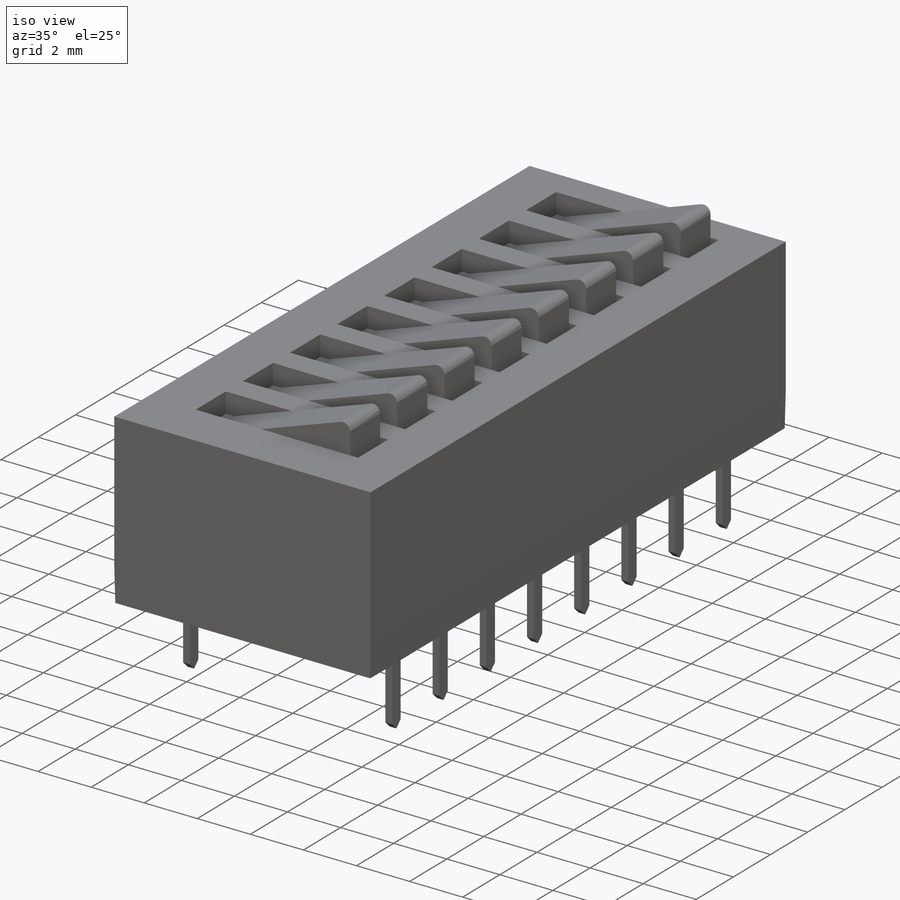
[diagram: iso view]
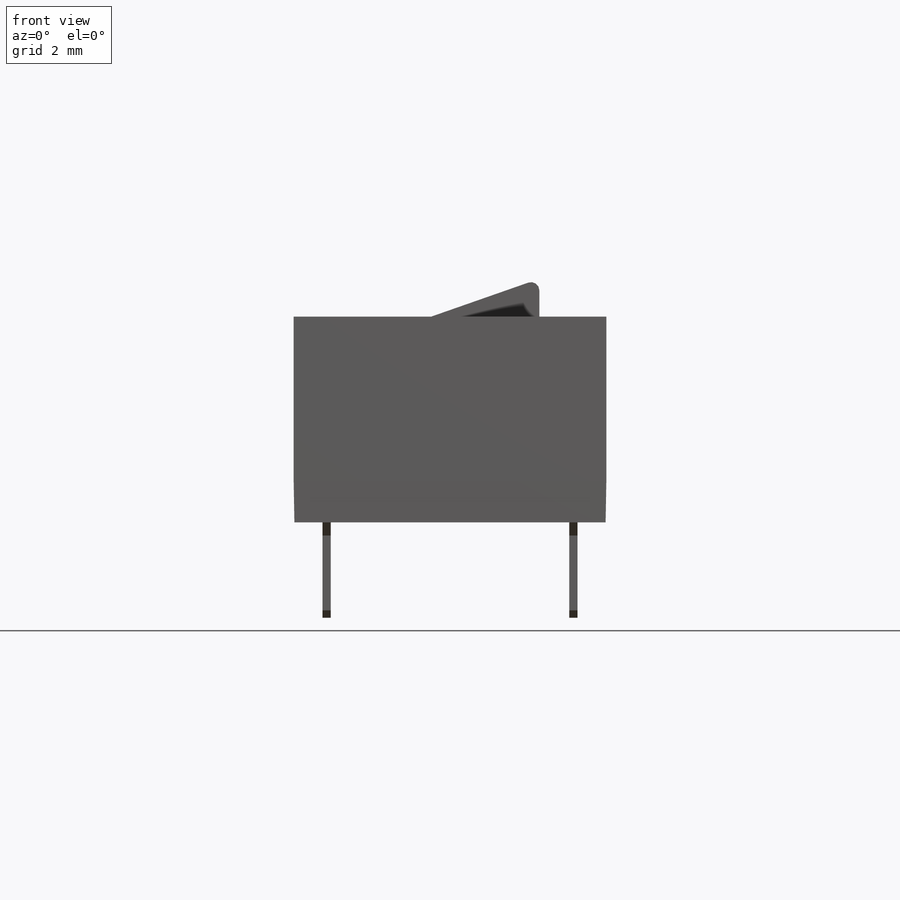
[diagram: front view]
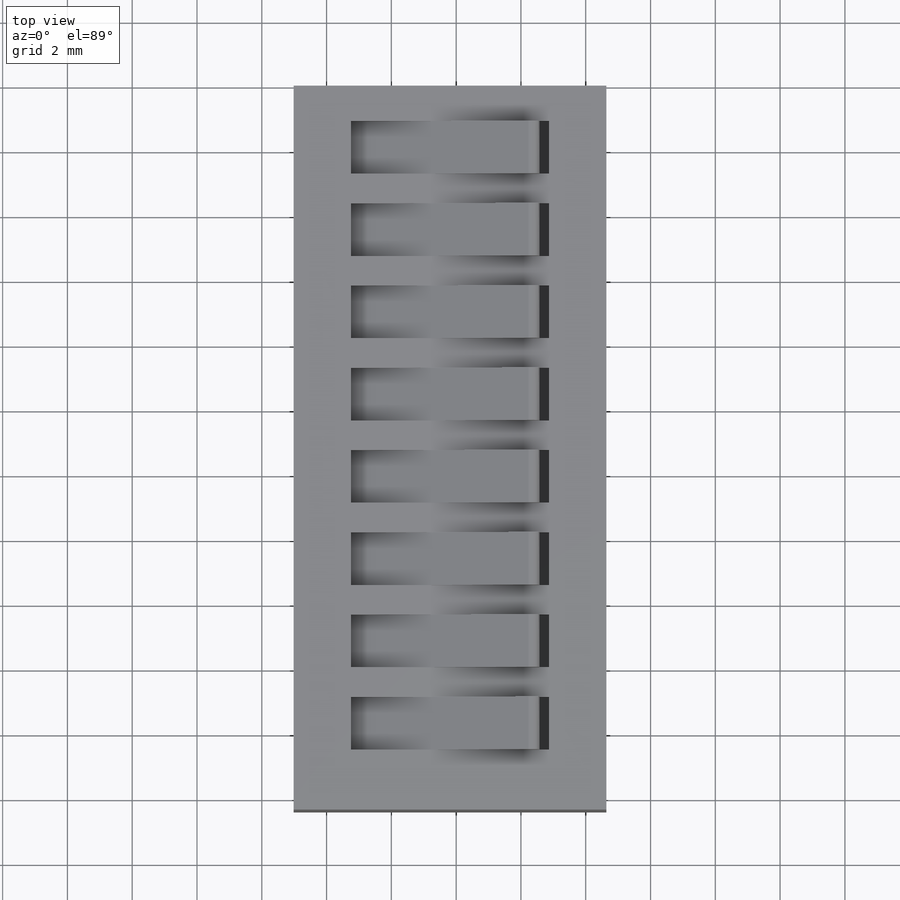
[diagram: top view]
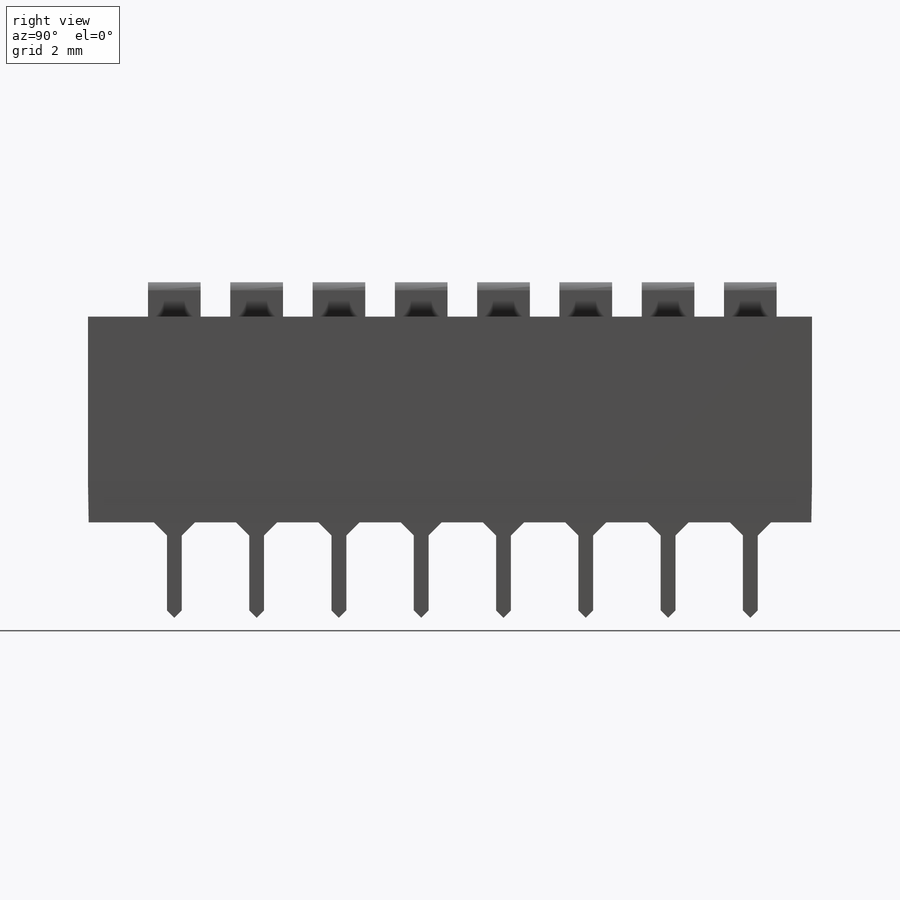
[diagram: right view]
SOLIDWORKS PART (.sldprt)
format: sldprt  version: not decoded by parser v0  size: 489,472 bytes
history: native  units: mm
features: sketch x7, plane x4, cut_extrude x3, extrude x2, pattern_linear x2, material x1, chamfer x1, mirror x1 (+12 scaffold rows collapsed)
feature tree (33):
  scaffold x12  (default folders/planes/origin — collapsed)
  material  "Material <not specified>"
  plane  "Plane1"  Offset=0.381mm
  sketch  "Sketch1"  dims[D1=20.447mm D2=1.905mm D3=9.652mm D4=1.016mm]
  extrude  "Base-Extrude"  Depth=6.35mm
  chamfer  "Chamfer1"  Distance=1.27mm Angle=1deg
  plane  "Plane2"
  plane  "Plane3"  Offset=1.905mm
  sketch  "Sketch3"  dims[c1.D2=0.4064mm c1.D1=4.064mm c1.D3=0.7112mm c1.D4=2.5654mm c2.D2=0.762mm c2.D3=4.064mm c2.D1=1.27mm c2.D5=0.254mm c2.D6=1.0mm c2.D7=5.0mm]
  sketch  "Sketch4"  dims[c1.D1=0.4064mm c1.D2=~0.511253mm c2.D2=~206.560101deg c3.D2=~0.511253mm c4.D2=45.0deg]
  cut_extrude  "Cut-Extrude1"  [1 undecoded]
  sketch  "Sketch5"
  cut_extrude  "Cut-Extrude2"  [1 undecoded]
  pattern_linear  "LPattern2"  Count1=8 Count2=1 Spacing1=2.54mm Spacing2=50mm
  plane  "Plane4"
  mirror  "Mirror1"
  sketch  "Sketch6"  dims[D1=6.1214mm D2=1.6256mm D3=1.0922mm]
  cut_extrude  "Cut-Extrude3"  Depth=0.762mm
  sketch  "Sketch7"  dims[c1.D1=0.254mm c1.D2=5.4864mm c1.D3=5.4864mm c2.D3=19.3deg]
  extrude  "Boss-Extrude1"  Depth=1.6256mm
  pattern_linear  "LPattern3"  Count1=8 Count2=1 Spacing1=2.54mm Spacing2=50mm
  sketch  "Component_Outline"
decode coverage: 11 of 16 modeling features carry decoded parameters
note: ~ marks probable driven/reference dimensions
note: 2 parameter values undecoded
note: suppression state not decoded; provenance and decode notes live in map.json
